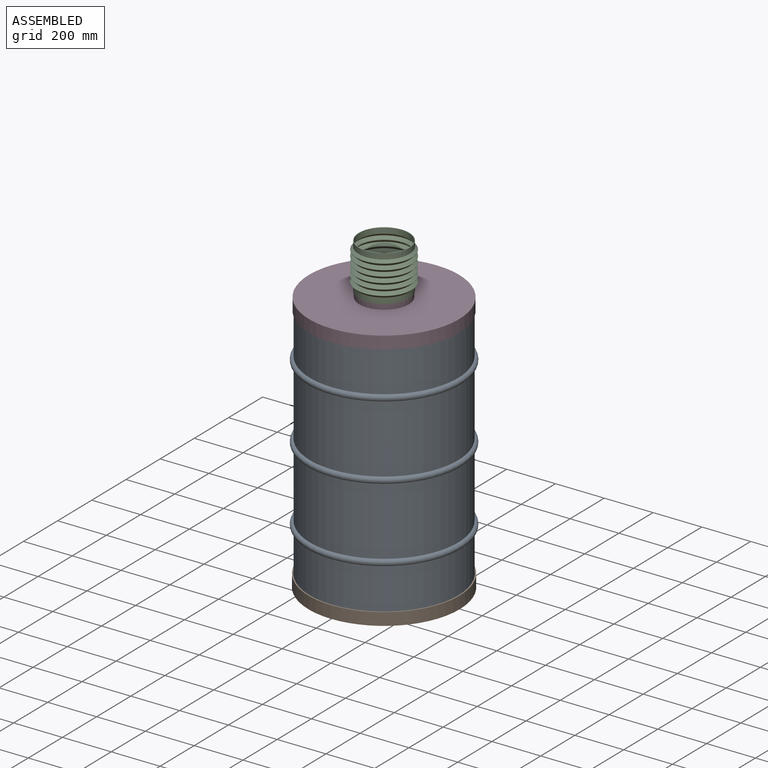
[diagram: assembled view]
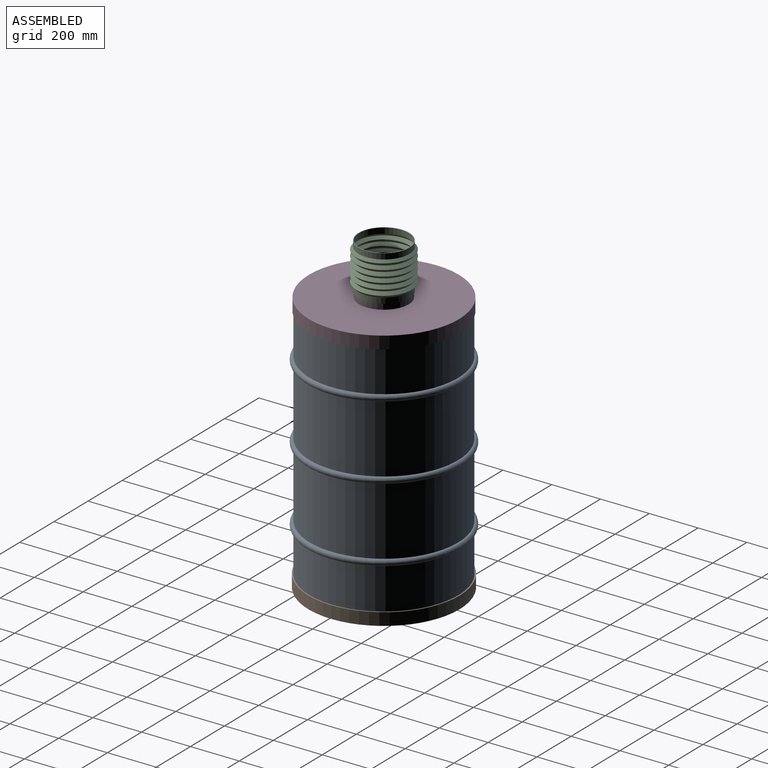
[diagram: assembled view, second angle]
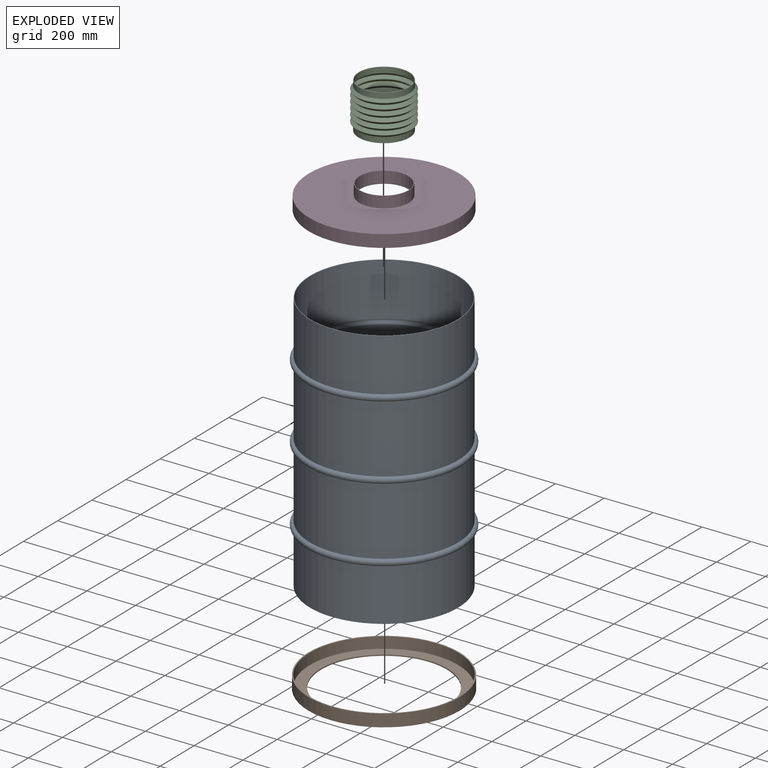
[diagram: exploded view]
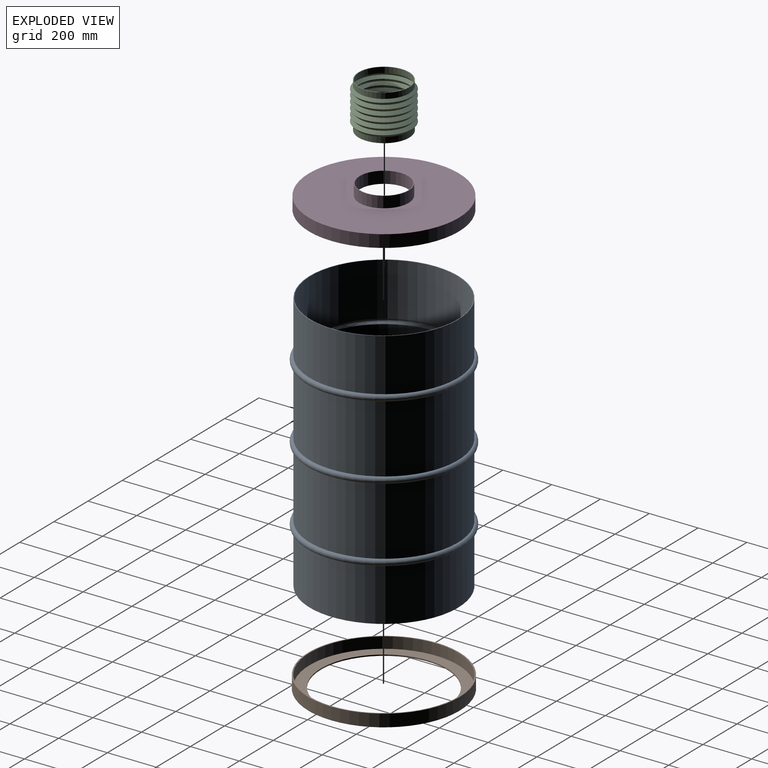
[diagram: exploded view, second angle]
ASSEMBLY  parts=4 mates=3
PART A: 17 faces, bbox 685.6x685.6x1066.8 mm
  f0: torus R=304.01mm, axis (0,0,-1), area 78237.5mm2, adj f1,f8
  f1: cylinder r=304.01mm len=608.01mm, axis (0,0,-1), area 533689.5mm2, adj f0,f2
  f2: torus R=304.01mm, axis (0,0,-1), area 78237.5mm2, adj f1,f3
  f3: cylinder r=304.01mm len=608.01mm, axis (0,0,-1), area 533689.5mm2, adj f2,f4
  f4: torus R=304.01mm, axis (0,0,-1), area 78237.5mm2, adj f3,f5
  f5: cylinder r=304.01mm len=608.01mm, axis (0,0,-1), area 412396.4mm2, adj f4,f6
  f6: plane 608.01x608.01mm, normal (0,0,-1), area 290345.2mm2, adj f5
  f7: plane 608.01x608.01mm, normal (0,0,1), area 4831.5mm2, adj f8,f16
  f8: cylinder r=304.01mm len=608.01mm, axis (0,0,-1), area 412396.4mm2, adj f0,f7
  f9: torus R=304.01mm, axis (0,0,-1), area 72032mm2, adj f10,f16
  f10: cylinder r=301.47mm len=602.93mm, axis (0,0,-1), area 540075.1mm2, adj f9,f11
  f11: torus R=304.01mm, axis (0,0,-1), area 72032mm2, adj f10,f12
  f12: cylinder r=301.47mm len=602.93mm, axis (0,0,-1), area 540075.1mm2, adj f11,f13
  f13: torus R=304.01mm, axis (0,0,-1), area 72032mm2, adj f12,f14
  f14: cylinder r=301.47mm len=602.93mm, axis (0,0,-1), area 409561.9mm2, adj f13,f15
  f15: plane 602.93x602.93mm, normal (0,0,1), area 285513.8mm2, adj f14
  f16: cylinder r=301.47mm len=602.93mm, axis (0,0,-1), area 414373.1mm2, adj f7,f9
PART B: 6 faces, bbox 619.1x619.1x50.8 mm
  f0: plane 619.13x619.13mm, normal (0,0,1), area 9192mm2, adj f1,f5
  f1: cylinder r=309.56mm len=619.13mm, axis (0,0,1), area 98808mm2, adj f0,f2
  f2: plane 619.13x619.13mm, normal (0,0,-1), area 90700.6mm2, adj f1,f3
  f3: cylinder r=258.76mm len=517.53mm, axis (0,0,1), area 7743.1mm2, adj f2,f4
  f4: plane 609.6x609.6mm, normal (0,0,1), area 81508.6mm2, adj f3,f5
  f5: cylinder r=304.8mm len=609.6mm, axis (0,0,1), area 88167.1mm2, adj f0,f4
PART C: 41 faces, bbox 247.4x247.4x187.1 mm
  f0: cylinder r=101.6mm len=203.2mm, axis (0,0,-1), area 1540.6mm2, adj f1,f40
  f1: cone r=101.6mm half-angle=45deg, axis (0,0,-1), area 10216.2mm2, adj f0,f2
  f2: cone r=112.35mm half-angle=45deg, axis (0,0,1), area 10216.2mm2, adj f1,f3
  f3: cylinder r=101.6mm len=203.2mm, axis (0,0,-1), area 14694.5mm2, adj f2,f4
  f4: plane 207.91x207.91mm, normal (0,0,-1), area 1521.8mm2, adj f3,f5
  f5: cylinder r=103.96mm len=207.91mm, axis (0,0,-1), area 15035.4mm2, adj f4,f6
  f6: cone r=114.01mm half-angle=45deg, axis (0,0,1), area 9739.8mm2, adj f5,f7
  f7: torus R=113.32mm, axis (0,0,-1), area 1100.2mm2, adj f6,f8
  f8: cone r=114.01mm half-angle=45deg, axis (0,0,-1), area 10848mm2, adj f7,f9
  f9: cone r=114.01mm half-angle=45deg, axis (0,0,1), area 10848mm2, adj f8,f10
  f10: torus R=113.32mm, axis (0,0,-1), area 1100.2mm2, adj f9,f11
  f11: cone r=114.01mm half-angle=45deg, axis (0,0,-1), area 10848mm2, adj f10,f12
  f12: cone r=114.01mm half-angle=45deg, axis (0,0,1), area 10848mm2, adj f11,f13
  f13: torus R=113.32mm, axis (0,0,-1), area 1100.2mm2, adj f12,f14
  f14: cone r=114.01mm half-angle=45deg, axis (0,0,-1), area 10848mm2, adj f13,f15
  f15: cone r=114.01mm half-angle=45deg, axis (0,0,1), area 10848mm2, adj f14,f16
  f16: torus R=113.32mm, axis (0,0,-1), area 1100.2mm2, adj f15,f17
  f17: cone r=114.01mm half-angle=45deg, axis (0,0,-1), area 10848mm2, adj f16,f18
  f18: cone r=114.01mm half-angle=45deg, axis (0,0,1), area 10848mm2, adj f17,f19
  f19: torus R=113.32mm, axis (0,0,-1), area 1100.2mm2, adj f18,f20
  f20: cone r=114.01mm half-angle=45deg, axis (0,0,-1), area 10848mm2, adj f19,f21
  f21: cone r=114.01mm half-angle=45deg, axis (0,0,1), area 10848mm2, adj f20,f22
  f22: cylinder r=114.01mm len=228.03mm, axis (0,0,-1), area 988.9mm2, adj f21,f23
  f23: cone r=114.01mm half-angle=45deg, axis (0,0,-1), area 9739.8mm2, adj f22,f24
  f24: cylinder r=103.96mm len=207.91mm, axis (0,0,-1), area 15035.4mm2, adj f23,f25
  f25: plane 207.91x207.91mm, normal (0,0,1), area 1521.8mm2, adj f24,f26
  f26: cylinder r=101.6mm len=203.2mm, axis (0,0,-1), area 14694.5mm2, adj f25,f27
  f27: cone r=101.6mm half-angle=45deg, axis (0,0,-1), area 10216.2mm2, adj f26,f28
  f28: cone r=112.35mm half-angle=45deg, axis (0,0,1), area 10216.2mm2, adj f27,f29
  f29: cylinder r=101.6mm len=203.2mm, axis (0,0,-1), area 1540.6mm2, adj f28,f30
  f30: cone r=101.6mm half-angle=45deg, axis (0,0,-1), area 10216.2mm2, adj f29,f31
  f31: cone r=112.35mm half-angle=45deg, axis (0,0,1), area 10216.2mm2, adj f30,f32
  f32: cylinder r=101.6mm len=203.2mm, axis (0,0,-1), area 1540.6mm2, adj f31,f33
  f33: cone r=101.6mm half-angle=45deg, axis (0,0,-1), area 10216.2mm2, adj f32,f34
  f34: cone r=112.35mm half-angle=45deg, axis (0,0,1), area 10216.2mm2, adj f33,f35
  f35: cylinder r=101.6mm len=203.2mm, axis (0,0,-1), area 1540.6mm2, adj f34,f36
  f36: cone r=101.6mm half-angle=45deg, axis (0,0,-1), area 10216.2mm2, adj f35,f37
  f37: cone r=112.35mm half-angle=45deg, axis (0,0,1), area 10216.2mm2, adj f36,f38
  f38: cylinder r=101.6mm len=203.2mm, axis (0,0,-1), area 1540.6mm2, adj f37,f39
  f39: cone r=101.6mm half-angle=45deg, axis (0,0,-1), area 10216.2mm2, adj f38,f40
  f40: cone r=112.35mm half-angle=45deg, axis (0,0,1), area 10216.2mm2, adj f0,f39
PART D: 8 faces, bbox 614.9x614.9x96.8 mm
  f0: cylinder r=304.8mm len=609.6mm, axis (0,0,1), area 92199.7mm2, adj f1,f7
  f1: plane 609.6x609.6mm, normal (0,0,-1), area 261108.1mm2, adj f0,f2
  f2: cylinder r=98.94mm len=197.89mm, axis (0,0,1), area 30272.2mm2, adj f1,f3
  f3: plane 203.2x203.2mm, normal (0,0,1), area 1673.9mm2, adj f2,f4
  f4: cylinder r=101.6mm len=203.2mm, axis (0,0,1), area 29389mm2, adj f3,f5
  f5: plane 614.91x614.91mm, normal (0,0,1), area 264544.6mm2, adj f4,f6
  f6: cylinder r=307.46mm len=614.91mm, axis (0,0,1), area 98135.9mm2, adj f5,f7
  f7: plane 614.91x614.91mm, normal (0,0,-1), area 5110.3mm2, adj f0,f6
PLACE A t=(-71.47,96.53,-246.59)mm
PLACE B t=(-71.47,96.53,-246.59)mm
PLACE C t=(-71.47,96.53,-246.59)mm
PLACE D t=(-71.47,96.53,-246.59)mm
MATE fastened C.f27 <-> D.f0  axis (0,0,-1) through (690.53,96.53,910.16)mm
MATE fastened A.f0 <-> D.f0  axis (0,0,1) through (690.53,96.53,884.48)mm
MATE fastened A.f0 <-> B.f1  axis (0,0,-1) through (690.53,96.53,-182.32)mm
